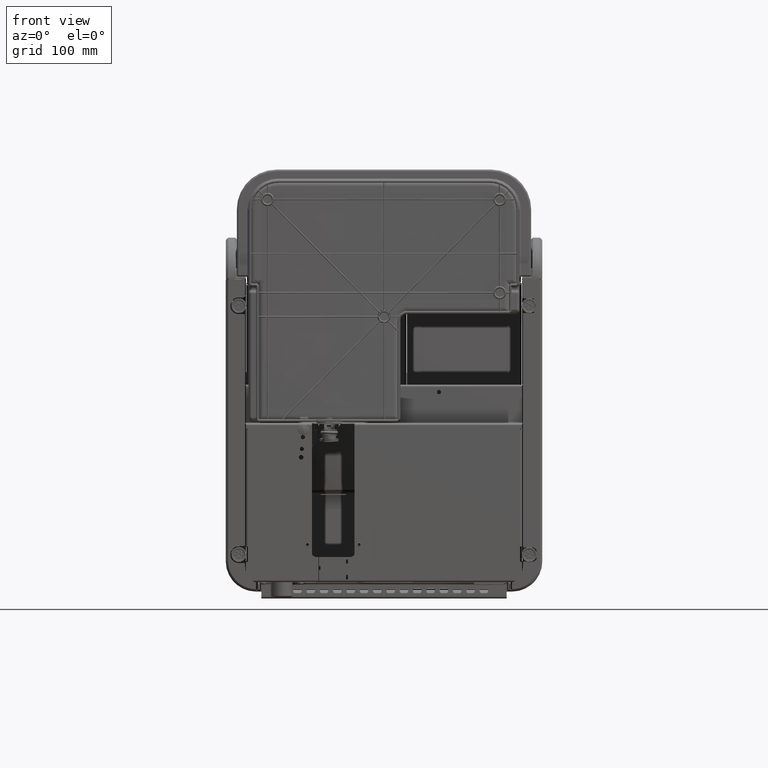
[diagram: clean part render]
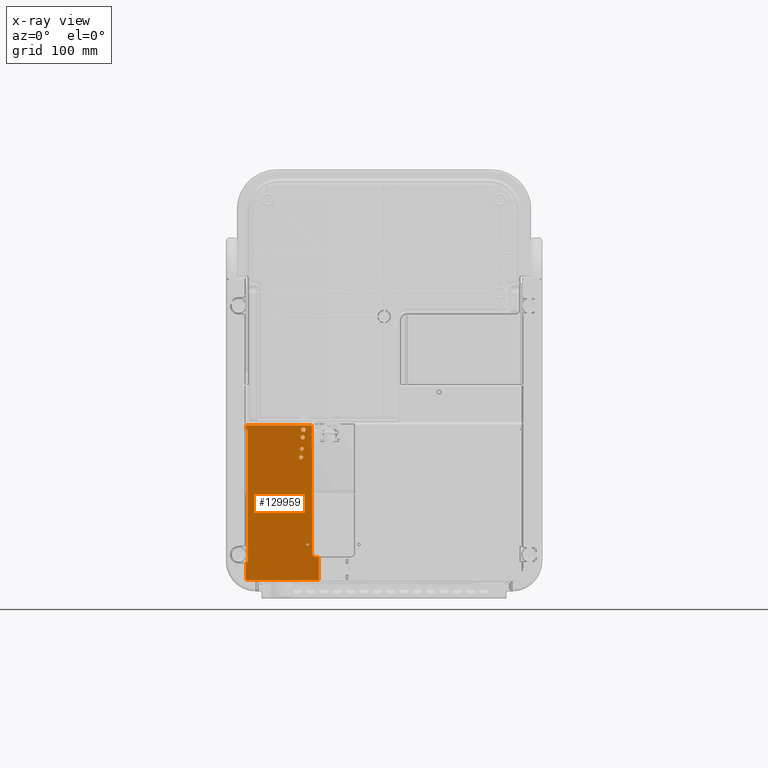
[diagram: x-ray — body ghosted, one internal face saturated and labeled with its STEP entity id]
A machine part, front view, then the same camera in x-ray: the body is ghosted and one INTERNAL B-rep face — a face not visible from any outside direction — is saturated and labeled: STEP entity #129959.
In plain terms, the highlighted planar face has unit normal (0, 1, 0).
Its self-contained STEP definition (entity closure, byte-faithful):
#2023=FACE_BOUND('',#31777,.T.);
#2024=FACE_BOUND('',#31778,.T.);
#2025=FACE_BOUND('',#31779,.T.);
#2026=FACE_BOUND('',#31780,.T.);
#2027=FACE_BOUND('',#31781,.T.);
#17884=CIRCLE('',#138758,1.);
#17887=CIRCLE('',#138763,1.);
#17966=CIRCLE('',#138879,2.5);
#17968=CIRCLE('',#138882,2.75);
#18035=CIRCLE('',#138987,0.249999999999995);
#18036=CIRCLE('',#138988,0.250000000000004);
#18037=CIRCLE('',#138989,5.);
#18038=CIRCLE('',#138990,2.75);
#18039=CIRCLE('',#138991,2.5);
#18040=CIRCLE('',#138992,1.621);
#25728=FACE_OUTER_BOUND('',#31776,.T.);
#31776=EDGE_LOOP('',(#112091,#112092,#112093,#112094,#112095,#112096,#112097,
#112098,#112099,#112100,#112101,#112102,#112103,#112104,#112105,#112106));
#31777=EDGE_LOOP('',(#112107));
#31778=EDGE_LOOP('',(#112108));
#31779=EDGE_LOOP('',(#112109));
#31780=EDGE_LOOP('',(#112110));
#31781=EDGE_LOOP('',(#112111));
#39988=LINE('',#273820,#49847);
#40024=LINE('',#273967,#49883);
#40140=LINE('',#274270,#49999);
#40148=LINE('',#274306,#50007);
#40258=LINE('',#274654,#50117);
#40262=LINE('',#274665,#50121);
#40263=LINE('',#274666,#50122);
#40264=LINE('',#274668,#50123);
#40265=LINE('',#274673,#50124);
#40266=LINE('',#274675,#50125);
#40267=LINE('',#274676,#50126);
#49847=VECTOR('',#161968,10.);
#49883=VECTOR('',#162108,10.);
#49999=VECTOR('',#162340,10.);
#50007=VECTOR('',#162376,10.);
#50117=VECTOR('',#162682,10.);
#50121=VECTOR('',#162694,10.);
#50122=VECTOR('',#162695,10.);
#50123=VECTOR('',#162696,10.);
#50124=VECTOR('',#162701,10.);
#50125=VECTOR('',#162702,10.);
#50126=VECTOR('',#162703,10.);
#62891=VERTEX_POINT('',#273807);
#62892=VERTEX_POINT('',#273808);
#62896=VERTEX_POINT('',#273818);
#62898=VERTEX_POINT('',#273824);
#62953=VERTEX_POINT('',#273961);
#62955=VERTEX_POINT('',#273965);
#63084=VERTEX_POINT('',#274265);
#63092=VERTEX_POINT('',#274290);
#63094=VERTEX_POINT('',#274296);
#63097=VERTEX_POINT('',#274303);
#63098=VERTEX_POINT('',#274305);
#63236=VERTEX_POINT('',#274650);
#63238=VERTEX_POINT('',#274653);
#63241=VERTEX_POINT('',#274664);
#63242=VERTEX_POINT('',#274667);
#63243=VERTEX_POINT('',#274670);
#63244=VERTEX_POINT('',#274672);
#63245=VERTEX_POINT('',#274674);
#63246=VERTEX_POINT('',#274678);
#63247=VERTEX_POINT('',#274680);
#63248=VERTEX_POINT('',#274682);
#82240=EDGE_CURVE('',#62891,#62892,#17884,.T.);
#82246=EDGE_CURVE('',#62891,#62896,#39988,.T.);
#82249=EDGE_CURVE('',#62898,#62896,#17887,.T.);
#82315=EDGE_CURVE('',#62953,#62955,#40024,.T.);
#82473=EDGE_CURVE('',#62955,#63084,#40140,.T.);
#82484=EDGE_CURVE('',#63092,#63092,#17966,.T.);
#82487=EDGE_CURVE('',#63094,#63094,#17968,.T.);
#82490=EDGE_CURVE('',#63098,#63097,#40148,.T.);
#82663=EDGE_CURVE('',#63238,#63236,#40258,.T.);
#82669=EDGE_CURVE('',#63084,#63241,#40262,.T.);
#82670=EDGE_CURVE('',#62892,#63241,#40263,.T.);
#82671=EDGE_CURVE('',#62898,#63242,#40264,.T.);
#82672=EDGE_CURVE('',#63242,#63098,#18035,.T.);
#82673=EDGE_CURVE('',#63097,#63243,#18036,.T.);
#82674=EDGE_CURVE('',#63243,#63244,#40265,.T.);
#82675=EDGE_CURVE('',#63245,#63244,#40266,.T.);
#82676=EDGE_CURVE('',#63245,#63238,#40267,.T.);
#82677=EDGE_CURVE('',#62953,#63236,#18037,.T.);
#82678=EDGE_CURVE('',#63246,#63246,#18038,.T.);
#82679=EDGE_CURVE('',#63247,#63247,#18039,.T.);
#82680=EDGE_CURVE('',#63248,#63248,#18040,.T.);
#112091=ORIENTED_EDGE('',*,*,#82473,.T.);
#112092=ORIENTED_EDGE('',*,*,#82669,.T.);
#112093=ORIENTED_EDGE('',*,*,#82670,.F.);
#112094=ORIENTED_EDGE('',*,*,#82240,.F.);
#112095=ORIENTED_EDGE('',*,*,#82246,.T.);
#112096=ORIENTED_EDGE('',*,*,#82249,.F.);
#112097=ORIENTED_EDGE('',*,*,#82671,.T.);
#112098=ORIENTED_EDGE('',*,*,#82672,.T.);
#112099=ORIENTED_EDGE('',*,*,#82490,.T.);
#112100=ORIENTED_EDGE('',*,*,#82673,.T.);
#112101=ORIENTED_EDGE('',*,*,#82674,.T.);
#112102=ORIENTED_EDGE('',*,*,#82675,.F.);
#112103=ORIENTED_EDGE('',*,*,#82676,.T.);
#112104=ORIENTED_EDGE('',*,*,#82663,.T.);
#112105=ORIENTED_EDGE('',*,*,#82677,.F.);
#112106=ORIENTED_EDGE('',*,*,#82315,.T.);
#112107=ORIENTED_EDGE('',*,*,#82678,.T.);
#112108=ORIENTED_EDGE('',*,*,#82679,.T.);
#112109=ORIENTED_EDGE('',*,*,#82484,.T.);
#112110=ORIENTED_EDGE('',*,*,#82487,.T.);
#112111=ORIENTED_EDGE('',*,*,#82680,.T.);
#125371=PLANE('',#138986);
#129959=ADVANCED_FACE('',(#25728,#2023,#2024,#2025,#2026,#2027),#125371,
 .T.);
#138758=AXIS2_PLACEMENT_3D('',#273809,#161958,#161959);
#138763=AXIS2_PLACEMENT_3D('',#273826,#161974,#161975);
#138879=AXIS2_PLACEMENT_3D('',#274292,#162362,#162363);
#138882=AXIS2_PLACEMENT_3D('',#274298,#162369,#162370);
#138986=AXIS2_PLACEMENT_3D('',#274663,#162692,#162693);
#138987=AXIS2_PLACEMENT_3D('',#274669,#162697,#162698);
#138988=AXIS2_PLACEMENT_3D('',#274671,#162699,#162700);
#138989=AXIS2_PLACEMENT_3D('',#274677,#162704,#162705);
#138990=AXIS2_PLACEMENT_3D('',#274679,#162706,#162707);
#138991=AXIS2_PLACEMENT_3D('',#274681,#162708,#162709);
#138992=AXIS2_PLACEMENT_3D('',#274683,#162710,#162711);
#161958=DIRECTION('center_axis',(-3.54033577661921E-15,-1.,-1.16434639707563E-14));
#161959=DIRECTION('ref_axis',(-0.707106781186545,-5.72977689489831E-15,
0.70710678118655));
#161968=DIRECTION('',(1.,-3.54033577661907E-15,-1.24001115292806E-14));
#161974=DIRECTION('center_axis',(3.54033577661921E-15,1.,1.16434639707563E-14));
#161975=DIRECTION('ref_axis',(0.707106781186545,5.72977689489831E-15,-0.70710678118655));
#162108=DIRECTION('',(1.,-3.54033577661907E-15,-1.18817194555257E-14));
#162340=DIRECTION('',(-9.417804735002E-15,1.16434639707564E-14,-1.));
#162362=DIRECTION('center_axis',(-3.54033577661921E-15,-1.,-1.16434639707563E-14));
#162363=DIRECTION('ref_axis',(-1.,3.54033577661907E-15,1.24001115292806E-14));
#162369=DIRECTION('center_axis',(-3.54033577661921E-15,-1.,-1.16434639707563E-14));
#162370=DIRECTION('ref_axis',(-1.,3.54033577661907E-15,1.24001115292806E-14));
#162376=DIRECTION('',(1.29047583586557E-14,-1.16434639707564E-14,1.));
#162682=DIRECTION('',(-1.21832181422964E-14,1.16434639707564E-14,-1.));
#162692=DIRECTION('center_axis',(3.54033577661921E-15,1.,1.16434639707563E-14));
#162693=DIRECTION('ref_axis',(-1.,3.54033577661907E-15,1.24001115292806E-14));
#162694=DIRECTION('',(-1.,3.54033577661907E-15,1.25071209774373E-14));
#162695=DIRECTION('',(-1.27725133824043E-14,1.16434639707564E-14,-1.));
#162696=DIRECTION('',(1.24001115292806E-14,-1.16434639707564E-14,1.));
#162697=DIRECTION('center_axis',(-3.54033577661921E-15,-1.,-1.16434639707563E-14));
#162698=DIRECTION('ref_axis',(1.24001115292806E-14,-1.16434639707564E-14,
1.));
#162699=DIRECTION('center_axis',(-3.54033577661921E-15,-1.,-1.16434639707563E-14));
#162700=DIRECTION('ref_axis',(-1.24001115292806E-14,1.16434639707564E-14,
-1.));
#162701=DIRECTION('',(-1.,3.54033577661907E-15,1.24001115292806E-14));
#162702=DIRECTION('',(-1.27725133824043E-14,1.16434639707564E-14,-1.));
#162703=DIRECTION('',(1.,-3.54033577661907E-15,-1.26141304255939E-14));
#162704=DIRECTION('center_axis',(3.54033577661921E-15,1.,1.16434639707563E-14));
#162705=DIRECTION('ref_axis',(-0.707106781186556,1.07365677655478E-14,-0.707106781186539));
#162706=DIRECTION('center_axis',(-3.54033577661921E-15,-1.,-1.16434639707563E-14));
#162707=DIRECTION('ref_axis',(-1.,3.54033577661907E-15,1.24001115292806E-14));
#162708=DIRECTION('center_axis',(-3.54033577661921E-15,-1.,-1.16434639707563E-14));
#162709=DIRECTION('ref_axis',(-1.,3.54033577661907E-15,1.24001115292806E-14));
#162710=DIRECTION('center_axis',(-3.54033577661921E-15,-1.,-1.16434639707563E-14));
#162711=DIRECTION('ref_axis',(1.,-3.54033577661907E-15,-1.24001115292806E-14));
#273807=CARTESIAN_POINT('',(-165.000000000001,0.800000000002872,-173.799999999996));
#273808=CARTESIAN_POINT('',(-166.000000000001,0.800000000002887,-174.799999999996));
#273809=CARTESIAN_POINT('Origin',(-165.000000000001,0.800000000002884,-174.799999999996));
#273818=CARTESIAN_POINT('',(-164.250000000001,0.80000000000287,-173.799999999996));
#273820=CARTESIAN_POINT('',(-81.625000000001,0.800000000002577,-173.799999999998));
#273824=CARTESIAN_POINT('',(-163.250000000001,0.800000000002854,-172.799999999996));
#273826=CARTESIAN_POINT('Origin',(-164.250000000001,0.800000000002858,-172.799999999996));
#273961=CARTESIAN_POINT('',(-81.7000000000009,0.800000000002507,-167.799999999997));
#273965=CARTESIAN_POINT('',(-78.5000000000009,0.800000000002479,-167.799999999566));
#273967=CARTESIAN_POINT('',(-43.3500000000009,0.800000000002372,-167.799999999998));
#274265=CARTESIAN_POINT('',(-78.5000000000012,0.800000000002816,-195.299999999997));
#274270=CARTESIAN_POINT('',(-78.5000000000006,0.800000000002115,-135.099999999782));
#274290=CARTESIAN_POINT('',(-96.3018280251767,0.800000000001047,-37.8820356408413));
#274292=CARTESIAN_POINT('Origin',(-98.8018280251767,0.800000000001055,-37.8820356408413));
#274296=CARTESIAN_POINT('',(-96.940816601203,0.800000000001167,-48.0432215613771));
#274298=CARTESIAN_POINT('Origin',(-99.690816601203,0.800000000001177,-48.0432215613771));
#274303=CARTESIAN_POINT('',(-163.499999999999,0.800000000001012,-14.4999999999963));
#274305=CARTESIAN_POINT('',(-163.500000000001,0.800000000002651,-155.299999999996));
#274306=CARTESIAN_POINT('',(-163.5,0.800000000001524,-58.4499999999963));
#274650=CARTESIAN_POINT('',(-86.7000000000008,0.800000000002467,-162.799999999997));
#274653=CARTESIAN_POINT('',(-86.6999999999989,0.800000000000682,-9.49999999999729));
#274654=CARTESIAN_POINT('',(-86.6999999999995,0.800000000001223,-55.9499999999973));
#274663=CARTESIAN_POINT('Origin',(-1.17071818038222E-13,0.800000000001457,
-102.399999999998));
#274664=CARTESIAN_POINT('',(-166.000000000001,0.800000000003126,-195.299999999996));
#274665=CARTESIAN_POINT('',(-83.0000000000013,0.800000000002832,-195.299999999997));
#274666=CARTESIAN_POINT('',(-165.999999999999,0.800000000000934,-6.9999999999963));
#274667=CARTESIAN_POINT('',(-163.250000000001,0.800000000002654,-155.549999999996));
#274668=CARTESIAN_POINT('',(-163.25,0.800000000002344,-128.974999999996));
#274669=CARTESIAN_POINT('Origin',(-163.500000000001,0.800000000002654,-155.549999999996));
#274670=CARTESIAN_POINT('',(-163.499999999999,0.800000000001006,-13.9999999999963));
#274671=CARTESIAN_POINT('Origin',(-163.499999999999,0.800000000001009,-14.2499999999963));
#274672=CARTESIAN_POINT('',(-165.999999999999,0.800000000001015,-13.9999999999963));
#274673=CARTESIAN_POINT('',(-82.999999999999,0.800000000000721,-13.9999999999973));
#274674=CARTESIAN_POINT('',(-165.999999999999,0.800000000000963,-9.4999999999963));
#274675=CARTESIAN_POINT('',(-165.999999999999,0.800000000000934,-6.9999999999963));
#274676=CARTESIAN_POINT('',(83.0000000000011,0.800000000000081,-9.49999999999944));
#274677=CARTESIAN_POINT('Origin',(-81.7000000000008,0.800000000002449,-162.799999999997));
#274678=CARTESIAN_POINT('',(-94.0298147934307,0.800000000000769,-14.7703186451128));
#274679=CARTESIAN_POINT('Origin',(-96.7798147934307,0.800000000000779,-14.7703186451128));
#274680=CARTESIAN_POINT('',(-95.0816476267094,0.80000000000088,-23.9353098675569));
#274681=CARTESIAN_POINT('Origin',(-97.5816476267094,0.800000000000889,-23.9353098675569));
#274682=CARTESIAN_POINT('',(-93.6210000000007,0.800000000002359,-152.899999999997));
#274683=CARTESIAN_POINT('Origin',(-92.0000000000007,0.800000000002353,-152.899999999997));